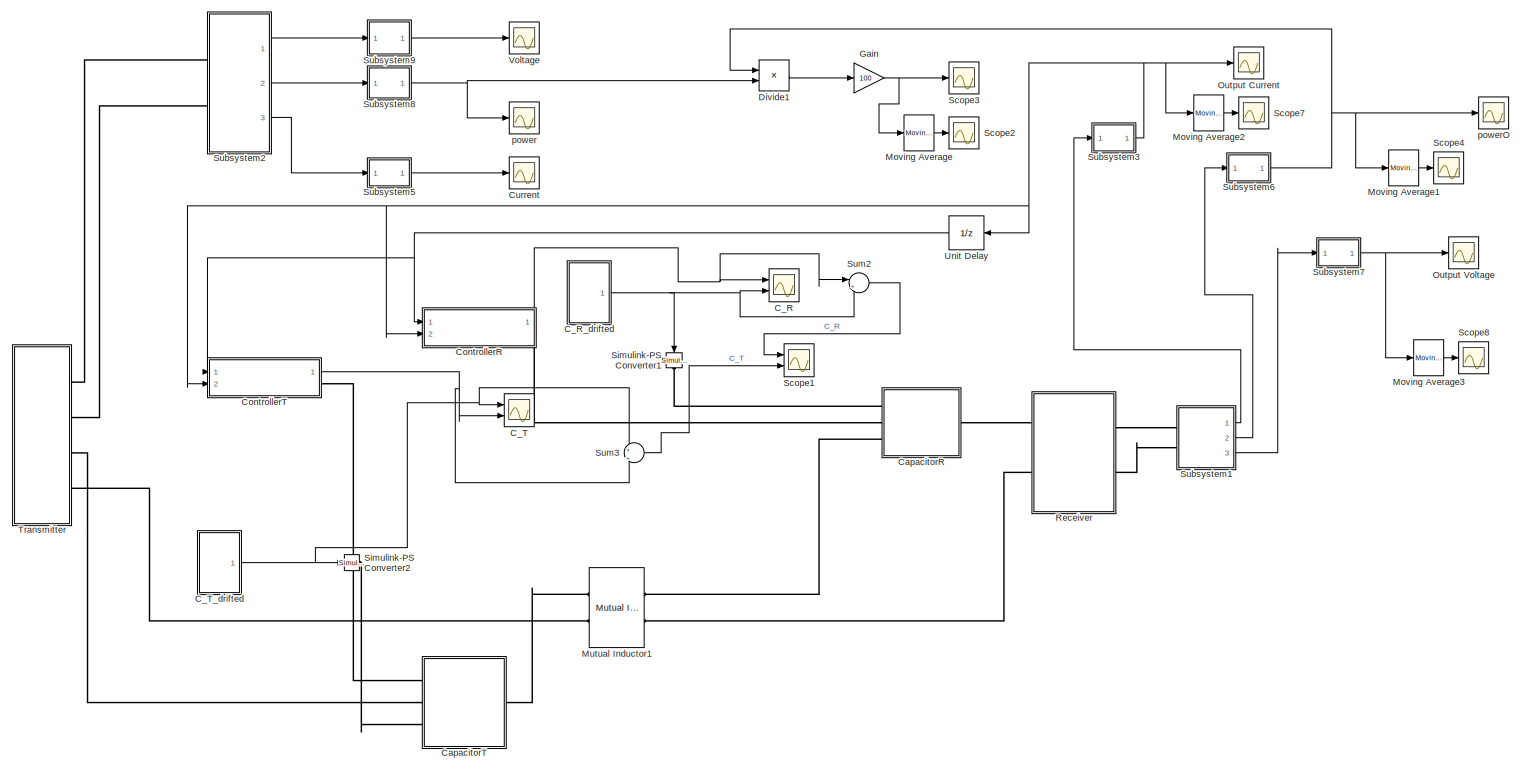
[diagram: root canvas - part 1/1, most of the canvas]
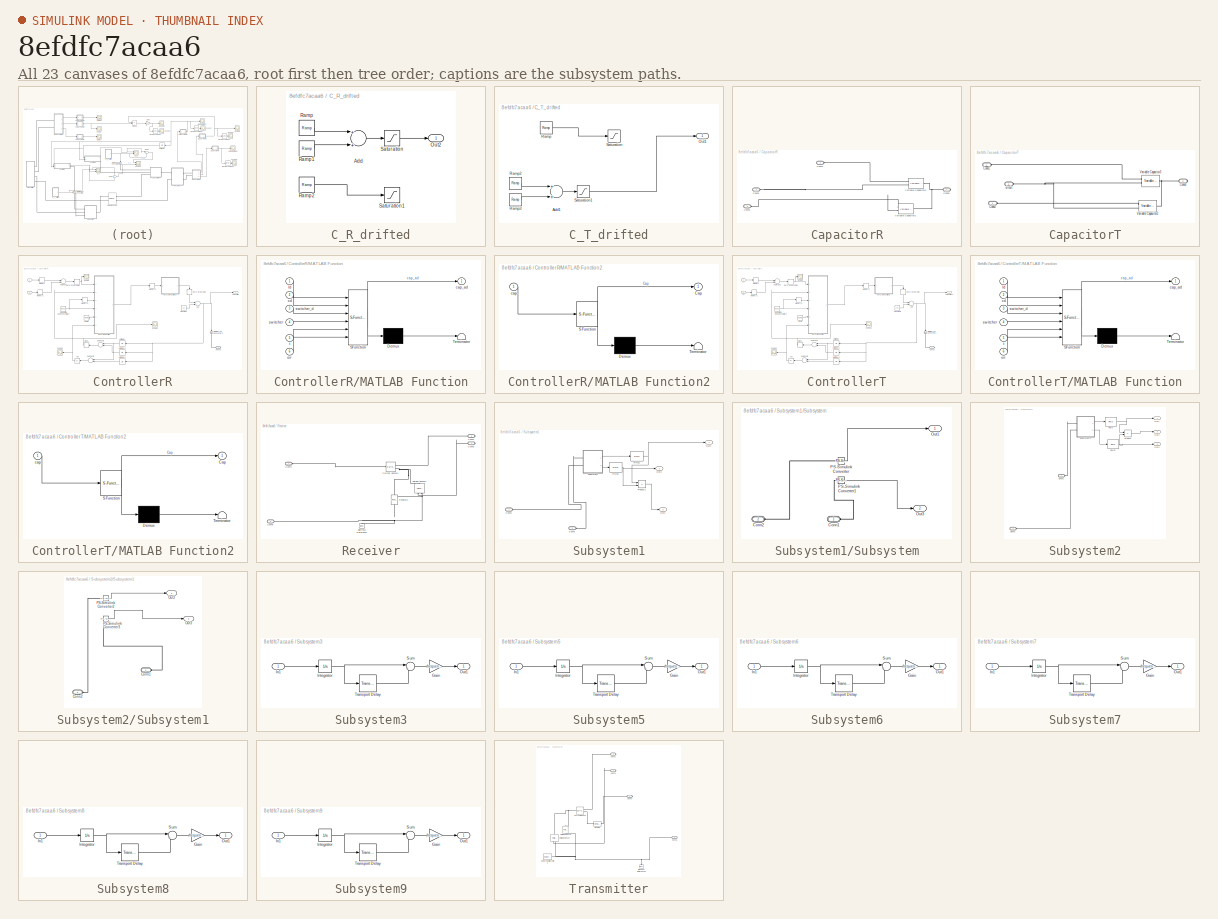
[diagram: thumbnail index - all 23 canvases of the model, root first then tree order]
MODEL slx_8efdfc7acaa6
KIND model
CONFIG AbsTol = auto
CONFIG EnableMultiTasking = off
CONFIG FixedStep = auto
CONFIG MaxStep = auto
CONFIG MinStep = auto
CONFIG RelTol = 1e-3
CONFIG SampleTimeConstraint = Unconstrained
CONFIG Solver = FixedStepAuto
CONFIG SolverName = FixedStepAuto
CONFIG StartTime = 0.0
CONFIG StopTime = 0.1
BLOCK [Scope] C_R
  Floating = off
  NumInputPorts = 2
  Ports = [2]
  ScopeSpecificationString = Simulink.scopes.TimeScopeBlockCfg('CurrentConfiguration', extmgr.ConfigurationSet(extmgr.Configuration('Core','General UI',true,'FigureColor',[0.941176470588235 0.941176470588235 0.941176470588235]),extmgr.Configuration('Core','Source UI',true),extmgr.Configuration('Sources','WiredSimulink',true,'DataLoggingVariableName','ScopeData1'),extmgr.Configuration('Visuals','Time Domain',true,'SerializedDi...<+1899ch>
BLOCK [SubSystem] C_R_drifted
  Ports = [0, 1]
  RequestExecContextInheritance = off
BLOCK [Sum] C_R_drifted/Add
  InputSameDT = off
  OutDataTypeStr = Inherit: Inherit via internal rule
  Ports = [2, 1]
  SaturateOnIntegerOverflow = off
BLOCK [Outport] C_R_drifted/Out2
  IconDisplay = Port number
BLOCK [Reference] C_R_drifted/Ramp  REF=simulink/Sources/Ramp
  Ports = [0, 1]
  SourceBlock = simulink/Sources/Ramp
  SourceProductBaseCode = SL
  SourceProductName = Simulink
  SourceType = Ramp
BLOCK [Reference] C_R_drifted/Ramp1  REF=simulink/Sources/Ramp
  Ports = [0, 1]
  SourceBlock = simulink/Sources/Ramp
  SourceProductBaseCode = SL
  SourceProductName = Simulink
  SourceType = Ramp
BLOCK [Reference] C_R_drifted/Ramp2  REF=simulink/Sources/Ramp
  Ports = [0, 1]
  SourceBlock = simulink/Sources/Ramp
  SourceProductBaseCode = SL
  SourceProductName = Simulink
  SourceType = Ramp
BLOCK [Saturate] C_R_drifted/Saturation
  InputPortMap = u0
  LowerLimit = c/2
  Ports = [1, 1]
  UpperLimit = 0.55*c
BLOCK [Saturate] C_R_drifted/Saturation1
  InputPortMap = u0
  LowerLimit = c/2
  Ports = [1, 1]
  UpperLimit = 0.55*c
BLOCK [Scope] C_T
  Floating = off
  NumInputPorts = 2
  Ports = [2]
  ScopeSpecificationString = Simulink.scopes.TimeScopeBlockCfg('CurrentConfiguration', extmgr.ConfigurationSet(extmgr.Configuration('Core','General UI',true,'FigureColor',[0.941176470588235 0.941176470588235 0.941176470588235]),extmgr.Configuration('Core','Source UI',true),extmgr.Configuration('Sources','WiredSimulink',true,'DataLoggingVariableName','ScopeData6'),extmgr.Configuration('Visuals','Time Domain',true,'SerializedDi...<+1921ch>
BLOCK [SubSystem] C_T_drifted
  Ports = [0, 1]
  RequestExecContextInheritance = off
BLOCK [Sum] C_T_drifted/Add1
  InputSameDT = off
  OutDataTypeStr = Inherit: Inherit via internal rule
  Ports = [2, 1]
  SaturateOnIntegerOverflow = off
BLOCK [Outport] C_T_drifted/Out1
  IconDisplay = Port number
BLOCK [Reference] C_T_drifted/Ramp  REF=simulink/Sources/Ramp
  Commented = on
  Ports = [0, 1]
  SourceBlock = simulink/Sources/Ramp
  SourceProductBaseCode = SL
  SourceProductName = Simulink
  SourceType = Ramp
BLOCK [Reference] C_T_drifted/Ramp2  REF=simulink/Sources/Ramp
  Ports = [0, 1]
  SourceBlock = simulink/Sources/Ramp
  SourceProductBaseCode = SL
  SourceProductName = Simulink
  SourceType = Ramp
BLOCK [Reference] C_T_drifted/Ramp3  REF=simulink/Sources/Ramp
  Ports = [0, 1]
  SourceBlock = simulink/Sources/Ramp
  SourceProductBaseCode = SL
  SourceProductName = Simulink
  SourceType = Ramp
BLOCK [Saturate] C_T_drifted/Saturation
  Commented = on
  InputPortMap = u0
  LowerLimit = c/2
  Ports = [1, 1]
  UpperLimit = 0.55*c
BLOCK [Saturate] C_T_drifted/Saturation1
  InputPortMap = u0
  LowerLimit = c/2
  Ports = [1, 1]
  UpperLimit = 0.55*c
BLOCK [SubSystem] CapacitorR
  Ports = [0, 0, 0, 0, 0, 3, 1]
  RequestExecContextInheritance = off
BLOCK [PMIOPort] CapacitorR/Conn1
  Side = Left
BLOCK [PMIOPort] CapacitorR/Conn2
  Port = 2
  Side = Left
BLOCK [PMIOPort] CapacitorR/Conn3
  Port = 3
  Side = Left
BLOCK [PMIOPort] CapacitorR/Conn5
  Port = 4
  Side = Right
BLOCK [Reference] CapacitorR/Variable Capacitor1  REF=ee_lib/Passive/Variable Capacitor
  Ports = [0, 0, 0, 0, 0, 2, 1]
  SourceBlock = ee_lib/Passive/Variable Capacitor
  SourceProductBaseCode = PS
  SourceProductName = Simscape Electrical
  SourceType = Variable Capacitor
BLOCK [Reference] CapacitorR/Variable Capacitor2  REF=ee_lib/Passive/Variable Capacitor
  Ports = [0, 0, 0, 0, 0, 2, 1]
  SourceBlock = ee_lib/Passive/Variable Capacitor
  SourceProductBaseCode = PS
  SourceProductName = Simscape Electrical
  SourceType = Variable Capacitor
BLOCK [SubSystem] CapacitorT
  Ports = [0, 0, 0, 0, 0, 3, 1]
  RequestExecContextInheritance = off
BLOCK [PMIOPort] CapacitorT/Conn1
  Side = Left
BLOCK [PMIOPort] CapacitorT/Conn2
  Port = 4
  Side = Left
BLOCK [PMIOPort] CapacitorT/Conn3
  Port = 2
  Side = Right
BLOCK [Reference] CapacitorT/Variable Capacitor2  REF=ee_lib/Passive/Variable Capacitor
  Ports = [0, 0, 0, 0, 0, 2, 1]
  SourceBlock = ee_lib/Passive/Variable Capacitor
  SourceProductBaseCode = PS
  SourceProductName = Simscape Electrical
  SourceType = Variable Capacitor
BLOCK [Reference] CapacitorT/Variable Capacitor3  REF=ee_lib/Passive/Variable Capacitor
  Ports = [0, 0, 0, 0, 0, 2, 1]
  SourceBlock = ee_lib/Passive/Variable Capacitor
  SourceProductBaseCode = PS
  SourceProductName = Simscape Electrical
  SourceType = Variable Capacitor
BLOCK [PMIOPort] CapacitorT/circuit
  Port = 3
  Side = Left
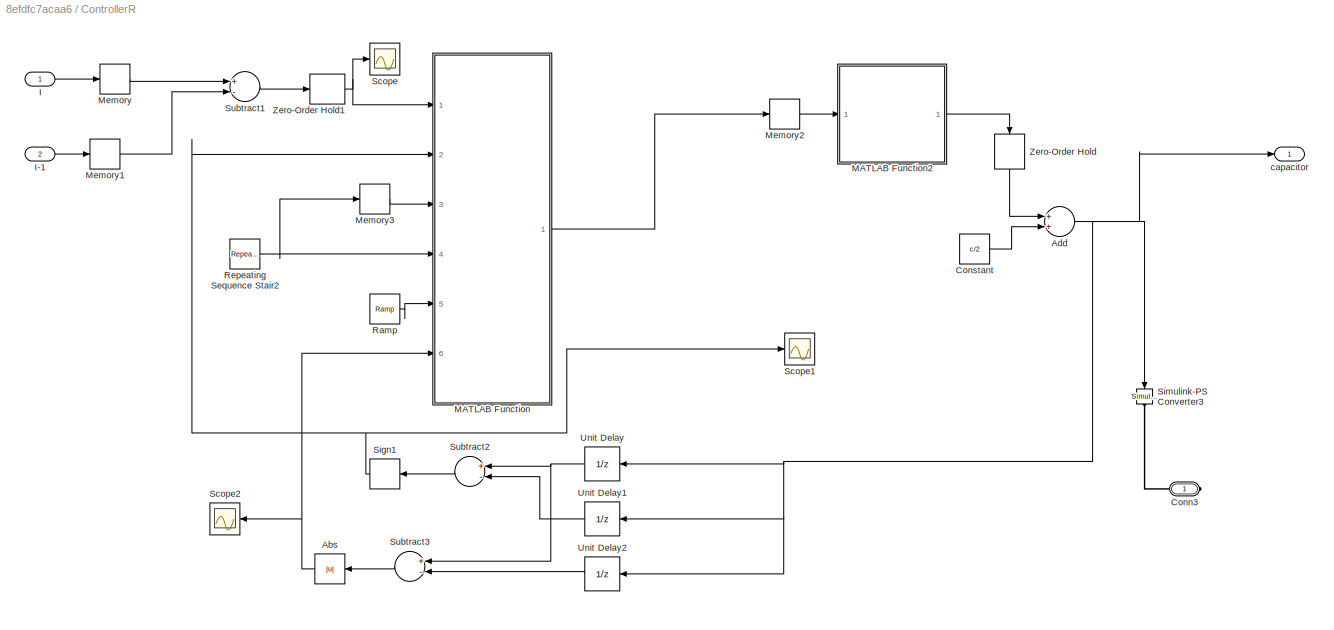
BLOCK [SubSystem] ControllerR
  Ports = [2, 1, 0, 0, 0, 0, 1]
  RequestExecContextInheritance = off
BLOCK [Abs] ControllerR/Abs
  SaturateOnIntegerOverflow = off
BLOCK [Sum] ControllerR/Add
  InputSameDT = off
  OutDataTypeStr = Inherit: Inherit via internal rule
  Ports = [2, 1]
  SaturateOnIntegerOverflow = off
BLOCK [PMIOPort] ControllerR/Conn3
  Side = Right
BLOCK [Constant] ControllerR/Constant
  SampleTime = 1e-8
  Value = c/2
BLOCK [Inport] ControllerR/I
  IconDisplay = Port number
BLOCK [Inport] ControllerR/I-1
  IconDisplay = Port number
  Port = 2
BLOCK [SubSystem] ControllerR/MATLAB Function
  ErrorFcn = Stateflow.Translate.translate
  PermitHierarchicalResolution = ExplicitOnly
  Ports = [6, 1]
  RequestExecContextInheritance = off
  SFBlockType = MATLAB Function
  TreatAsAtomicUnit = on
BLOCK [Demux] ControllerR/MATLAB Function/ Demux 
  Outputs = 1
  Ports = [1, 1]
BLOCK [S-Function] ControllerR/MATLAB Function/ SFunction 
  EnableBusSupport = on
  FunctionName = sf_sfun
  PortCounts = [6 2]
  Ports = [6, 2]
  SFcnIsStateOwnerBlock = off
  SFunctionDeploymentMode = off
  Tag = Stateflow S-Function 1
BLOCK [Terminator] ControllerR/MATLAB Function/ Terminator 
BLOCK [Inport] ControllerR/MATLAB Function/Id
  IconDisplay = Port number
BLOCK [Outport] ControllerR/MATLAB Function/cap_ad
  IconDisplay = Port number
BLOCK [Inport] ControllerR/MATLAB Function/cd
  IconDisplay = Port number
  Port = 2
BLOCK [Inport] ControllerR/MATLAB Function/err
  IconDisplay = Port number
  Port = 6
BLOCK [Inport] ControllerR/MATLAB Function/switcher
  IconDisplay = Port number
  Port = 4
BLOCK [Inport] ControllerR/MATLAB Function/switcher_d
  IconDisplay = Port number
  Port = 3
BLOCK [Inport] ControllerR/MATLAB Function/t
  IconDisplay = Port number
  Port = 5
BLOCK [SubSystem] ControllerR/MATLAB Function2
  ErrorFcn = Stateflow.Translate.translate
  PermitHierarchicalResolution = ExplicitOnly
  Ports = [1, 1]
  RequestExecContextInheritance = off
  SFBlockType = MATLAB Function
  TreatAsAtomicUnit = on
BLOCK [Demux] ControllerR/MATLAB Function2/ Demux 
  Outputs = 1
  Ports = [1, 1]
BLOCK [S-Function] ControllerR/MATLAB Function2/ SFunction 
  EnableBusSupport = on
  FunctionName = sf_sfun
  PortCounts = [1 2]
  Ports = [1, 2]
  SFcnIsStateOwnerBlock = off
  SFunctionDeploymentMode = off
  Tag = Stateflow S-Function 4
BLOCK [Terminator] ControllerR/MATLAB Function2/ Terminator 
BLOCK [Outport] ControllerR/MATLAB Function2/Cap
  IconDisplay = Port number
BLOCK [Inport] ControllerR/MATLAB Function2/cap
  IconDisplay = Port number
BLOCK [Memory] ControllerR/Memory
BLOCK [Memory] ControllerR/Memory1
BLOCK [Memory] ControllerR/Memory2
BLOCK [Memory] ControllerR/Memory3
BLOCK [Reference] ControllerR/Ramp  REF=simulink/Sources/Ramp
  Ports = [0, 1]
  SourceBlock = simulink/Sources/Ramp
  SourceProductBaseCode = SL
  SourceProductName = Simulink
  SourceType = Ramp
BLOCK [Reference] ControllerR/Repeating Sequence Stair2  REF=simulink/Sources/Repeating
Sequence
Stair
  Ports = [0, 1]
  SourceBlock = simulink/Sources/Repeating\nSequence\nStair
  SourceProductBaseCode = SL
  SourceProductName = Simulink
  SourceType = Repeating Sequence Stair
BLOCK [Scope] ControllerR/Scope
  Floating = off
  NumInputPorts = 1
  Ports = [1]
  ScopeSpecificationString = Simulink.scopes.TimeScopeBlockCfg('CurrentConfiguration', extmgr.ConfigurationSet(extmgr.Configuration('Core','General UI',true),extmgr.Configuration('Core','Source UI',true),extmgr.Configuration('Sources','WiredSimulink',true,'DataLoggingVariableName','ScopeData1'),extmgr.Configuration('Visuals','Time Domain',true,'SerializedDisplays',{struct('MinYLimReal','-0.00019','MaxYLimReal','0.00009','YLab...<+1448ch>
BLOCK [Scope] ControllerR/Scope1
  Floating = off
  NumInputPorts = 1
  Ports = [1]
  ScopeSpecificationString = Simulink.scopes.TimeScopeBlockCfg('CurrentConfiguration', extmgr.ConfigurationSet(extmgr.Configuration('Core','General UI',true),extmgr.Configuration('Core','Source UI',true),extmgr.Configuration('Sources','WiredSimulink',true,'DataLoggingVariableName','ScopeData1'),extmgr.Configuration('Visuals','Time Domain',true,'SerializedDisplays',{struct('MinYLimReal','-1.25','MaxYLimReal','1.25','YLabelReal...<+1375ch>
BLOCK [Scope] ControllerR/Scope2
  Floating = off
  NumInputPorts = 1
  Ports = [1]
  ScopeSpecificationString = Simulink.scopes.TimeScopeBlockCfg('CurrentConfiguration', extmgr.ConfigurationSet(extmgr.Configuration('Core','General UI',true),extmgr.Configuration('Core','Source UI',true),extmgr.Configuration('Sources','WiredSimulink',true,'DataLoggingVariableName','ScopeData2'),extmgr.Configuration('Visuals','Time Domain',true,'SerializedDisplays',{struct('MinYLimReal','-0.0000000000009','MaxYLimReal','0.0000...<+1474ch>
BLOCK [Signum] ControllerR/Sign1
BLOCK [Reference] ControllerR/Simulink-PS Converter3  REF=nesl_utility/Simulink-PS
Converter
  Ports = [1, 0, 0, 0, 0, 0, 1]
  SourceBlock = nesl_utility/Simulink-PS\nConverter
  SourceProductBaseCode = SS
  SourceProductName = Simscape
  SourceType = Simulink-PS\nConverter
BLOCK [Sum] ControllerR/Subtract1
  InputSameDT = off
  Inputs = +-
  OutDataTypeStr = Inherit: Inherit via internal rule
  Ports = [2, 1]
  SaturateOnIntegerOverflow = off
BLOCK [Sum] ControllerR/Subtract2
  InputSameDT = off
  Inputs = +-
  OutDataTypeStr = Inherit: Inherit via internal rule
  Ports = [2, 1]
  SaturateOnIntegerOverflow = off
BLOCK [Sum] ControllerR/Subtract3
  InputSameDT = off
  Inputs = +-
  OutDataTypeStr = Inherit: Inherit via internal rule
  Ports = [2, 1]
  SaturateOnIntegerOverflow = off
BLOCK [UnitDelay] ControllerR/Unit Delay
  HasFrameUpgradeWarning = on
  SampleTime = 2e-5
BLOCK [UnitDelay] ControllerR/Unit Delay1
  HasFrameUpgradeWarning = on
  SampleTime = 4e-5
BLOCK [UnitDelay] ControllerR/Unit Delay2
  HasFrameUpgradeWarning = on
  SampleTime = 6e-5
BLOCK [ZeroOrderHold] ControllerR/Zero-Order Hold
  SampleTime = 2e-5
BLOCK [ZeroOrderHold] ControllerR/Zero-Order Hold1
  SampleTime = 2e-5
BLOCK [Outport] ControllerR/capacitor 
  IconDisplay = Port number
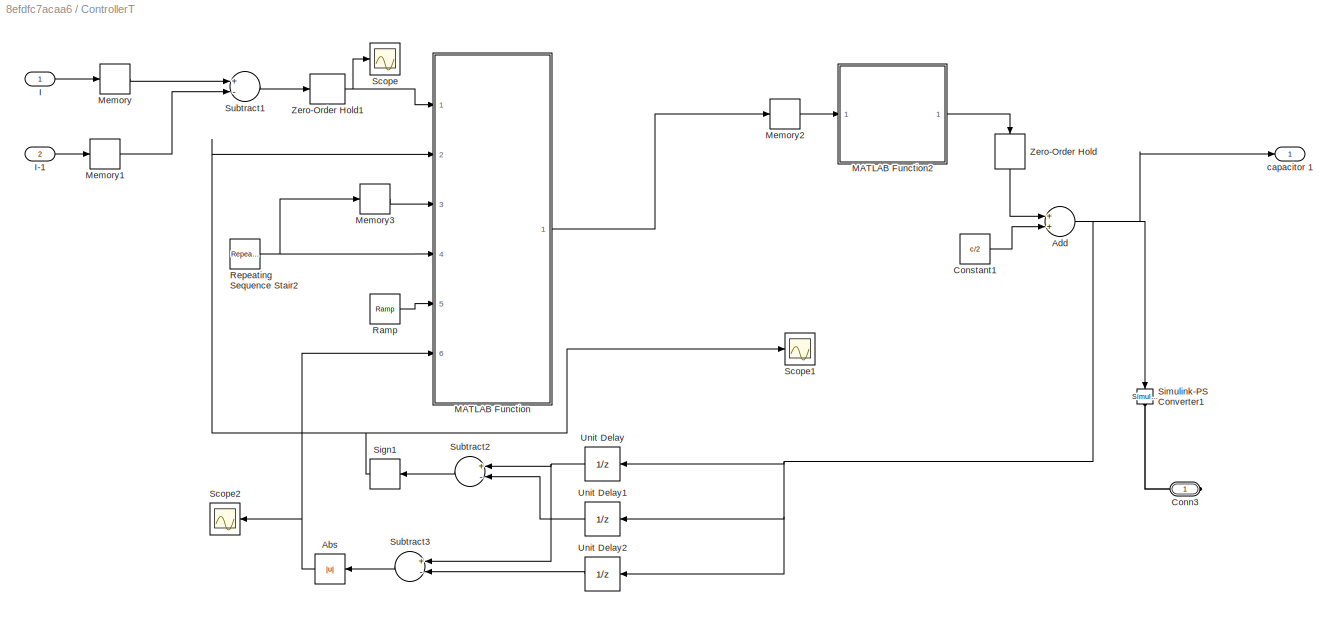
BLOCK [SubSystem] ControllerT
  Ports = [2, 1, 0, 0, 0, 0, 1]
  RequestExecContextInheritance = off
BLOCK [Abs] ControllerT/Abs
  SaturateOnIntegerOverflow = off
BLOCK [Sum] ControllerT/Add
  InputSameDT = off
  OutDataTypeStr = Inherit: Inherit via internal rule
  Ports = [2, 1]
  SaturateOnIntegerOverflow = off
BLOCK [PMIOPort] ControllerT/Conn3
  Side = Right
BLOCK [Constant] ControllerT/Constant1
  SampleTime = 1e-8
  Value = c/2
BLOCK [Inport] ControllerT/I
  IconDisplay = Port number
BLOCK [Inport] ControllerT/I-1
  IconDisplay = Port number
  Port = 2
BLOCK [SubSystem] ControllerT/MATLAB Function
  ErrorFcn = Stateflow.Translate.translate
  PermitHierarchicalResolution = ExplicitOnly
  Ports = [6, 1]
  RequestExecContextInheritance = off
  SFBlockType = MATLAB Function
  TreatAsAtomicUnit = on
BLOCK [Demux] ControllerT/MATLAB Function/ Demux 
  Outputs = 1
  Ports = [1, 1]
BLOCK [S-Function] ControllerT/MATLAB Function/ SFunction 
  EnableBusSupport = on
  FunctionName = sf_sfun
  PortCounts = [6 2]
  Ports = [6, 2]
  SFcnIsStateOwnerBlock = off
  SFunctionDeploymentMode = off
  Tag = Stateflow S-Function 2
BLOCK [Terminator] ControllerT/MATLAB Function/ Terminator 
BLOCK [Inport] ControllerT/MATLAB Function/Id
  IconDisplay = Port number
BLOCK [Outport] ControllerT/MATLAB Function/cap_ad
  IconDisplay = Port number
BLOCK [Inport] ControllerT/MATLAB Function/cd
  IconDisplay = Port number
  Port = 2
BLOCK [Inport] ControllerT/MATLAB Function/err
  IconDisplay = Port number
  Port = 6
BLOCK [Inport] ControllerT/MATLAB Function/switcher
  IconDisplay = Port number
  Port = 4
BLOCK [Inport] ControllerT/MATLAB Function/switcher_d
  IconDisplay = Port number
  Port = 3
BLOCK [Inport] ControllerT/MATLAB Function/t
  IconDisplay = Port number
  Port = 5
BLOCK [SubSystem] ControllerT/MATLAB Function2
  ErrorFcn = Stateflow.Translate.translate
  PermitHierarchicalResolution = ExplicitOnly
  Ports = [1, 1]
  RequestExecContextInheritance = off
  SFBlockType = MATLAB Function
  TreatAsAtomicUnit = on
BLOCK [Demux] ControllerT/MATLAB Function2/ Demux 
  Outputs = 1
  Ports = [1, 1]
BLOCK [S-Function] ControllerT/MATLAB Function2/ SFunction 
  EnableBusSupport = on
  FunctionName = sf_sfun
  PortCounts = [1 2]
  Ports = [1, 2]
  SFcnIsStateOwnerBlock = off
  SFunctionDeploymentMode = off
  Tag = Stateflow S-Function 3
BLOCK [Terminator] ControllerT/MATLAB Function2/ Terminator 
BLOCK [Outport] ControllerT/MATLAB Function2/Cap
  IconDisplay = Port number
BLOCK [Inport] ControllerT/MATLAB Function2/cap
  IconDisplay = Port number
BLOCK [Memory] ControllerT/Memory
BLOCK [Memory] ControllerT/Memory1
BLOCK [Memory] ControllerT/Memory2
BLOCK [Memory] ControllerT/Memory3
BLOCK [Reference] ControllerT/Ramp  REF=simulink/Sources/Ramp
  Ports = [0, 1]
  SourceBlock = simulink/Sources/Ramp
  SourceProductBaseCode = SL
  SourceProductName = Simulink
  SourceType = Ramp
BLOCK [Reference] ControllerT/Repeating Sequence Stair2  REF=simulink/Sources/Repeating
Sequence
Stair
  Ports = [0, 1]
  SourceBlock = simulink/Sources/Repeating\nSequence\nStair
  SourceProductBaseCode = SL
  SourceProductName = Simulink
  SourceType = Repeating Sequence Stair
BLOCK [Scope] ControllerT/Scope
  Floating = off
  NumInputPorts = 1
  Ports = [1]
  ScopeSpecificationString = Simulink.scopes.TimeScopeBlockCfg('CurrentConfiguration', extmgr.ConfigurationSet(extmgr.Configuration('Core','General UI',true),extmgr.Configuration('Core','Source UI',true),extmgr.Configuration('Sources','WiredSimulink',true,'DataLoggingVariableName','ScopeData1'),extmgr.Configuration('Visuals','Time Domain',true,'SerializedDisplays',{struct('MinYLimReal','-0.00019','MaxYLimReal','0.00009','YLab...<+1448ch>
BLOCK [Scope] ControllerT/Scope1
  Floating = off
  NumInputPorts = 1
  Ports = [1]
  ScopeSpecificationString = Simulink.scopes.TimeScopeBlockCfg('CurrentConfiguration', extmgr.ConfigurationSet(extmgr.Configuration('Core','General UI',true),extmgr.Configuration('Core','Source UI',true),extmgr.Configuration('Sources','WiredSimulink',true,'DataLoggingVariableName','ScopeData2'),extmgr.Configuration('Visuals','Time Domain',true,'SerializedDisplays',{struct('MinYLimReal','-1.25','MaxYLimReal','1.25','YLabelReal...<+1375ch>
BLOCK [Scope] ControllerT/Scope2
  Floating = off
  NumInputPorts = 1
  Ports = [1]
  ScopeSpecificationString = Simulink.scopes.TimeScopeBlockCfg('CurrentConfiguration', extmgr.ConfigurationSet(extmgr.Configuration('Core','General UI',true),extmgr.Configuration('Core','Source UI',true),extmgr.Configuration('Sources','WiredSimulink',true,'DataLoggingVariableName','ScopeData3'),extmgr.Configuration('Visuals','Time Domain',true,'SerializedDisplays',{struct('MinYLimReal','-0.0000000000009','MaxYLimReal','0.0000...<+1474ch>
BLOCK [Signum] ControllerT/Sign1
BLOCK [Reference] ControllerT/Simulink-PS Converter1  REF=nesl_utility/Simulink-PS
Converter
  Ports = [1, 0, 0, 0, 0, 0, 1]
  SourceBlock = nesl_utility/Simulink-PS\nConverter
  SourceProductBaseCode = SS
  SourceProductName = Simscape
  SourceType = Simulink-PS\nConverter
BLOCK [Sum] ControllerT/Subtract1
  InputSameDT = off
  Inputs = +-
  OutDataTypeStr = Inherit: Inherit via internal rule
  Ports = [2, 1]
  SaturateOnIntegerOverflow = off
BLOCK [Sum] ControllerT/Subtract2
  InputSameDT = off
  Inputs = +-
  OutDataTypeStr = Inherit: Inherit via internal rule
  Ports = [2, 1]
  SaturateOnIntegerOverflow = off
BLOCK [Sum] ControllerT/Subtract3
  InputSameDT = off
  Inputs = +-
  OutDataTypeStr = Inherit: Inherit via internal rule
  Ports = [2, 1]
  SaturateOnIntegerOverflow = off
BLOCK [UnitDelay] ControllerT/Unit Delay
  HasFrameUpgradeWarning = on
  SampleTime = 2e-5
BLOCK [UnitDelay] ControllerT/Unit Delay1
  HasFrameUpgradeWarning = on
  SampleTime = 4e-5
BLOCK [UnitDelay] ControllerT/Unit Delay2
  HasFrameUpgradeWarning = on
  SampleTime = 6e-5
BLOCK [ZeroOrderHold] ControllerT/Zero-Order Hold
  SampleTime = 2e-5
BLOCK [ZeroOrderHold] ControllerT/Zero-Order Hold1
  SampleTime = 2e-5
BLOCK [Outport] ControllerT/capacitor 1
  IconDisplay = Port number
BLOCK [Scope] Current
  Floating = off
  NumInputPorts = 1
  Ports = [1]
  ScopeSpecificationString = Simulink.scopes.TimeScopeBlockCfg('CurrentConfiguration', extmgr.ConfigurationSet(extmgr.Configuration('Core','General UI',true),extmgr.Configuration('Core','Source UI',true),extmgr.Configuration('Sources','WiredSimulink',true,'DataLoggingVariableName','ScopeData2'),extmgr.Configuration('Visuals','Time Domain',true,'SerializedDisplays',{struct('MinYLimReal','-0.00107','MaxYLimReal','0.0096','YLabe...<+1438ch>
BLOCK [Product] Divide1
  InputSameDT = off
  Inputs = */
  OutDataTypeStr = Inherit: Inherit via internal rule
  Ports = [2, 1]
  RndMeth = Floor
  SaturateOnIntegerOverflow = off
BLOCK [Gain] Gain
  Gain = 100
  OutDataTypeStr = Inherit: Inherit via internal rule
  ParamDataTypeStr = Inherit: Inherit via internal rule
  SaturateOnIntegerOverflow = off
BLOCK [Reference] Moving Average  REF=dspstat3/Moving
Average
  Ports = [1, 1]
  SourceBlock = dspstat3/Moving\nAverage
  SourceProductBaseCode = DS
  SourceProductName = DSP System Toolbox
  SourceType = dsp.simulink.MovingAverage
BLOCK [Reference] Moving Average1  REF=dspstat3/Moving
Average
  Ports = [1, 1]
  SourceBlock = dspstat3/Moving\nAverage
  SourceProductBaseCode = DS
  SourceProductName = DSP System Toolbox
  SourceType = dsp.simulink.MovingAverage
BLOCK [Reference] Moving Average2  REF=dspstat3/Moving
Average
  Ports = [1, 1]
  SourceBlock = dspstat3/Moving\nAverage
  SourceProductBaseCode = DS
  SourceProductName = DSP System Toolbox
  SourceType = dsp.simulink.MovingAverage
BLOCK [Reference] Moving Average3  REF=dspstat3/Moving
Average
  Ports = [1, 1]
  SourceBlock = dspstat3/Moving\nAverage
  SourceProductBaseCode = DS
  SourceProductName = DSP System Toolbox
  SourceType = dsp.simulink.MovingAverage
BLOCK [Reference] Mutual Inductor1  REF=fl_lib/Electrical/Electrical Elements/Mutual Inductor
  Ports = [0, 0, 0, 0, 0, 2, 2]
  SourceBlock = fl_lib/Electrical/Electrical Elements/Mutual Inductor
  SourceProductBaseCode = SS
  SourceProductName = Simscape
  SourceType = Mutual Inductor
BLOCK [Scope] Output Current
  Floating = off
  NumInputPorts = 1
  Ports = [1]
  ScopeSpecificationString = Simulink.scopes.TimeScopeBlockCfg('CurrentConfiguration', extmgr.ConfigurationSet(extmgr.Configuration('Core','General UI',true,'FigureColor',[0.941176470588235 0.941176470588235 0.941176470588235]),extmgr.Configuration('Core','Source UI',true),extmgr.Configuration('Sources','WiredSimulink',true,'DataLoggingVariableName','ScopeData3'),extmgr.Configuration('Visuals','Time Domain',true,'SerializedDi...<+1874ch>
BLOCK [Scope] Output Voltage
  Floating = off
  NumInputPorts = 1
  Ports = [1]
  ScopeSpecificationString = Simulink.scopes.TimeScopeBlockCfg('CurrentConfiguration', extmgr.ConfigurationSet(extmgr.Configuration('Core','General UI',true,'FigureColor',[0.941176470588235 0.941176470588235 0.941176470588235]),extmgr.Configuration('Core','Source UI',true),extmgr.Configuration('Sources','WiredSimulink',true,'DataLoggingVariableName','ScopeData4'),extmgr.Configuration('Visuals','Time Domain',true,'SerializedDi...<+1758ch>
BLOCK [SubSystem] Receiver
  Ports = [0, 0, 0, 0, 0, 2, 2]
  RequestExecContextInheritance = off
BLOCK [PMIOPort] Receiver/Conn1
  Side = Right
BLOCK [PMIOPort] Receiver/Conn2
  Port = 2
  Side = Right
BLOCK [PMIOPort] Receiver/Conn4
  Port = 3
  Side = Left
BLOCK [PMIOPort] Receiver/Conn5
  Port = 4
  Side = Left
BLOCK [Reference] Receiver/Current Sensor1  REF=fl_lib/Electrical/Electrical Sensors/Current Sensor
  Ports = [0, 0, 0, 0, 0, 1, 2]
  SourceBlock = fl_lib/Electrical/Electrical Sensors/Current Sensor
  SourceProductBaseCode = SS
  SourceProductName = Simscape
  SourceType = Current Sensor
BLOCK [Reference] Receiver/Electrical Reference  REF=fl_lib/Electrical/Electrical Elements/Electrical Reference
  Ports = [0, 0, 0, 0, 0, 1]
  SourceBlock = fl_lib/Electrical/Electrical Elements/Electrical Reference
  SourceProductBaseCode = SS
  SourceProductName = Simscape
  SourceType = Electrical Reference
BLOCK [Reference] Receiver/Resistor1  REF=ee_lib/Passive/Resistor
  Ports = [0, 0, 0, 0, 0, 1, 1]
  SourceBlock = ee_lib/Passive/Resistor
  SourceProductBaseCode = PS
  SourceProductName = Simscape Electrical
  SourceType = Resistor
BLOCK [Reference] Receiver/Voltage Sensor1  REF=fl_lib/Electrical/Electrical Sensors/Voltage Sensor
  Ports = [0, 0, 0, 0, 0, 1, 2]
  SourceBlock = fl_lib/Electrical/Electrical Sensors/Voltage Sensor
  SourceProductBaseCode = SS
  SourceProductName = Simscape
  SourceType = Voltage Sensor
BLOCK [Scope] Scope1
  Floating = off
  NumInputPorts = 2
  Ports = [2]
  ScopeSpecificationString = Simulink.scopes.TimeScopeBlockCfg('CurrentConfiguration', extmgr.ConfigurationSet(extmgr.Configuration('Core','General UI',true,'FigureColor',[0.941176470588235 0.941176470588235 0.941176470588235]),extmgr.Configuration('Core','Source UI',true),extmgr.Configuration('Sources','WiredSimulink',true,'DataLoggingVariableName','ScopeData1'),extmgr.Configuration('Visuals','Time Domain',true,'SerializedDi...<+1951ch>
BLOCK [Scope] Scope2
  Floating = off
  NumInputPorts = 1
  Ports = [1]
  ScopeSpecificationString = Simulink.scopes.TimeScopeBlockCfg('CurrentConfiguration', extmgr.ConfigurationSet(extmgr.Configuration('Core','General UI',true,'FigureColor',[0.941176470588235 0.941176470588235 0.941176470588235]),extmgr.Configuration('Core','Source UI',true),extmgr.Configuration('Sources','WiredSimulink',true,'DataLoggingVariableName','ScopeData2'),extmgr.Configuration('Visuals','Time Domain',true,'SerializedDi...<+1785ch>
BLOCK [Scope] Scope3
  Floating = off
  NumInputPorts = 1
  Ports = [1]
  ScopeSpecificationString = Simulink.scopes.TimeScopeBlockCfg('CurrentConfiguration', extmgr.ConfigurationSet(extmgr.Configuration('Core','General UI',true,'FigureColor',[0.941176470588235 0.941176470588235 0.941176470588235]),extmgr.Configuration('Core','Source UI',true),extmgr.Configuration('Sources','WiredSimulink',true,'DataLoggingVariableName','ScopeData5'),extmgr.Configuration('Visuals','Time Domain',true,'SerializedDi...<+1798ch>
BLOCK [Scope] Scope4
  Floating = off
  NumInputPorts = 1
  Ports = [1]
  ScopeSpecificationString = Simulink.scopes.TimeScopeBlockCfg('CurrentConfiguration', extmgr.ConfigurationSet(extmgr.Configuration('Core','General UI',true,'FigureColor',[0.941176470588235 0.941176470588235 0.941176470588235]),extmgr.Configuration('Core','Source UI',true),extmgr.Configuration('Sources','WiredSimulink',true,'DataLoggingVariableName','ScopeData3'),extmgr.Configuration('Visuals','Time Domain',true,'SerializedDi...<+1780ch>
BLOCK [Scope] Scope7
  Floating = off
  NumInputPorts = 1
  Ports = [1]
  ScopeSpecificationString = Simulink.scopes.TimeScopeBlockCfg('CurrentConfiguration', extmgr.ConfigurationSet(extmgr.Configuration('Core','General UI',true,'FigureColor',[0.941176470588235 0.941176470588235 0.941176470588235]),extmgr.Configuration('Core','Source UI',true),extmgr.Configuration('Sources','WiredSimulink',true,'DataLoggingVariableName','ScopeData4'),extmgr.Configuration('Visuals','Time Domain',true,'SerializedDi...<+1782ch>
BLOCK [Scope] Scope8
  Floating = off
  NumInputPorts = 1
  Ports = [1]
  ScopeSpecificationString = Simulink.scopes.TimeScopeBlockCfg('CurrentConfiguration', extmgr.ConfigurationSet(extmgr.Configuration('Core','General UI',true,'FigureColor',[0.941176470588235 0.941176470588235 0.941176470588235]),extmgr.Configuration('Core','Source UI',true),extmgr.Configuration('Sources','WiredSimulink',true,'DataLoggingVariableName','ScopeData5'),extmgr.Configuration('Visuals','Time Domain',true,'SerializedDi...<+1782ch>
BLOCK [Reference] Simulink-PS Converter1  REF=nesl_utility/Simulink-PS
Converter
  Ports = [1, 0, 0, 0, 0, 0, 1]
  SourceBlock = nesl_utility/Simulink-PS\nConverter
  SourceProductBaseCode = SS
  SourceProductName = Simscape
  SourceType = Simulink-PS\nConverter
BLOCK [Reference] Simulink-PS Converter2  REF=nesl_utility/Simulink-PS
Converter
  Ports = [1, 0, 0, 0, 0, 0, 1]
  SourceBlock = nesl_utility/Simulink-PS\nConverter
  SourceProductBaseCode = SS
  SourceProductName = Simscape
  SourceType = Simulink-PS\nConverter
BLOCK [SubSystem] Subsystem1
  Ports = [0, 3, 0, 0, 0, 2]
  RequestExecContextInheritance = off
BLOCK [PMIOPort] Subsystem1/Conn1
  Side = Left
BLOCK [PMIOPort] Subsystem1/Conn2
  Port = 2
  Side = Left
BLOCK [Outport] Subsystem1/Out1
  IconDisplay = Port number
BLOCK [Outport] Subsystem1/Out2
  IconDisplay = Port number
  Port = 2
BLOCK [Outport] Subsystem1/Out3
  IconDisplay = Port number
  Port = 3
BLOCK [Product] Subsystem1/Product1
  InputSameDT = off
  OutDataTypeStr = Inherit: Inherit via internal rule
  Ports = [2, 1]
  RndMeth = Floor
  SaturateOnIntegerOverflow = off
BLOCK [Reference] Subsystem1/RMS1  REF=powerlib_meascontrol/Measurements/RMS
  Ports = [1, 1]
  SourceBlock = powerlib_meascontrol/Measurements/RMS
  SourceProductBaseCode = PS
  SourceProductName = Simscape Electrical
  SourceType = RMS
BLOCK [Reference] Subsystem1/RMS3  REF=powerlib_meascontrol/Measurements/RMS
  Ports = [1, 1]
  SourceBlock = powerlib_meascontrol/Measurements/RMS
  SourceProductBaseCode = PS
  SourceProductName = Simscape Electrical
  SourceType = RMS
BLOCK [SubSystem] Subsystem1/Subsystem
  Ports = [0, 2, 0, 0, 0, 2]
  RequestExecContextInheritance = off
BLOCK [PMIOPort] Subsystem1/Subsystem/Conn1
  Side = Left
BLOCK [PMIOPort] Subsystem1/Subsystem/Conn2
  Port = 2
  Side = Left
BLOCK [Outport] Subsystem1/Subsystem/Out1
  IconDisplay = Port number
BLOCK [Outport] Subsystem1/Subsystem/Out3
  IconDisplay = Port number
  Port = 2
BLOCK [Reference] Subsystem1/Subsystem/PS-Simulink Converter  REF=nesl_utility/PS-Simulink
Converter
  Ports = [0, 1, 0, 0, 0, 1]
  SourceBlock = nesl_utility/PS-Simulink\nConverter
  SourceProductBaseCode = SS
  SourceProductName = Simscape
  SourceType = PS-Simulink\nConverter
BLOCK [Reference] Subsystem1/Subsystem/PS-Simulink Converter1  REF=nesl_utility/PS-Simulink
Converter
  Ports = [0, 1, 0, 0, 0, 1]
  SourceBlock = nesl_utility/PS-Simulink\nConverter
  SourceProductBaseCode = SS
  SourceProductName = Simscape
  SourceType = PS-Simulink\nConverter
BLOCK [SubSystem] Subsystem2
  Ports = [0, 3, 0, 0, 0, 2]
  RequestExecContextInheritance = off
BLOCK [PMIOPort] Subsystem2/Conn1
  Side = Left
BLOCK [PMIOPort] Subsystem2/Conn2
  Port = 2
  Side = Left
BLOCK [Outport] Subsystem2/Out1
  IconDisplay = Port number
BLOCK [Outport] Subsystem2/Out2
  IconDisplay = Port number
  Port = 2
BLOCK [Outport] Subsystem2/Out3
  IconDisplay = Port number
  Port = 3
BLOCK [Product] Subsystem2/Product
  InputSameDT = off
  OutDataTypeStr = Inherit: Inherit via internal rule
  Ports = [2, 1]
  RndMeth = Floor
  SaturateOnIntegerOverflow = off
BLOCK [Reference] Subsystem2/RMS  REF=powerlib_meascontrol/Measurements/RMS
  Ports = [1, 1]
  SourceBlock = powerlib_meascontrol/Measurements/RMS
  SourceProductBaseCode = PS
  SourceProductName = Simscape Electrical
  SourceType = RMS
BLOCK [Reference] Subsystem2/RMS2  REF=powerlib_meascontrol/Measurements/RMS
  Ports = [1, 1]
  SourceBlock = powerlib_meascontrol/Measurements/RMS
  SourceProductBaseCode = PS
  SourceProductName = Simscape Electrical
  SourceType = RMS
BLOCK [SubSystem] Subsystem2/Subsystem1
  Ports = [0, 2, 0, 0, 0, 2]
  RequestExecContextInheritance = off
BLOCK [PMIOPort] Subsystem2/Subsystem1/Conn1
  Side = Left
BLOCK [PMIOPort] Subsystem2/Subsystem1/Conn2
  Port = 2
  Side = Left
BLOCK [Outport] Subsystem2/Subsystem1/Out2
  IconDisplay = Port number
BLOCK [Outport] Subsystem2/Subsystem1/Out3
  IconDisplay = Port number
  Port = 2
BLOCK [Reference] Subsystem2/Subsystem1/PS-Simulink Converter2  REF=nesl_utility/PS-Simulink
Converter
  Ports = [0, 1, 0, 0, 0, 1]
  SourceBlock = nesl_utility/PS-Simulink\nConverter
  SourceProductBaseCode = SS
  SourceProductName = Simscape
  SourceType = PS-Simulink\nConverter
BLOCK [Reference] Subsystem2/Subsystem1/PS-Simulink Converter3  REF=nesl_utility/PS-Simulink
Converter
  Ports = [0, 1, 0, 0, 0, 1]
  SourceBlock = nesl_utility/PS-Simulink\nConverter
  SourceProductBaseCode = SS
  SourceProductName = Simscape
  SourceType = PS-Simulink\nConverter
BLOCK [SubSystem] Subsystem3
  Ports = [1, 1]
  RequestExecContextInheritance = off
BLOCK [Gain] Subsystem3/Gain
  Gain = frequency
  OutDataTypeStr = Inherit: Inherit via internal rule
  ParamDataTypeStr = Inherit: Inherit via internal rule
  SaturateOnIntegerOverflow = off
BLOCK [Inport] Subsystem3/In1
  IconDisplay = Port number
BLOCK [Integrator] Subsystem3/Integrator
  Ports = [1, 1]
BLOCK [Outport] Subsystem3/Out1
  IconDisplay = Port number
BLOCK [Sum] Subsystem3/Sum
  IconShape = round
  InputSameDT = off
  Inputs = |+-
  OutDataTypeStr = Inherit: Inherit via internal rule
  Ports = [2, 1]
  SaturateOnIntegerOverflow = off
BLOCK [TransportDelay] Subsystem3/Transport Delay
  DelayTime = 1/frequency
  Ports = [1, 1]
BLOCK [SubSystem] Subsystem5
  Ports = [1, 1]
  RequestExecContextInheritance = off
BLOCK [Gain] Subsystem5/Gain
  Gain = frequency
  OutDataTypeStr = Inherit: Inherit via internal rule
  ParamDataTypeStr = Inherit: Inherit via internal rule
  SaturateOnIntegerOverflow = off
BLOCK [Inport] Subsystem5/In1
  IconDisplay = Port number
BLOCK [Integrator] Subsystem5/Integrator
  Ports = [1, 1]
BLOCK [Outport] Subsystem5/Out1
  IconDisplay = Port number
BLOCK [Sum] Subsystem5/Sum
  IconShape = round
  InputSameDT = off
  Inputs = |+-
  OutDataTypeStr = Inherit: Inherit via internal rule
  Ports = [2, 1]
  SaturateOnIntegerOverflow = off
BLOCK [TransportDelay] Subsystem5/Transport Delay
  DelayTime = 1/frequency
  Ports = [1, 1]
BLOCK [SubSystem] Subsystem6
  Ports = [1, 1]
  RequestExecContextInheritance = off
BLOCK [Gain] Subsystem6/Gain
  Gain = frequency
  OutDataTypeStr = Inherit: Inherit via internal rule
  ParamDataTypeStr = Inherit: Inherit via internal rule
  SaturateOnIntegerOverflow = off
BLOCK [Inport] Subsystem6/In1
  IconDisplay = Port number
BLOCK [Integrator] Subsystem6/Integrator
  Ports = [1, 1]
BLOCK [Outport] Subsystem6/Out1
  IconDisplay = Port number
BLOCK [Sum] Subsystem6/Sum
  IconShape = round
  InputSameDT = off
  Inputs = |+-
  OutDataTypeStr = Inherit: Inherit via internal rule
  Ports = [2, 1]
  SaturateOnIntegerOverflow = off
BLOCK [TransportDelay] Subsystem6/Transport Delay
  DelayTime = 1/frequency
  Ports = [1, 1]
BLOCK [SubSystem] Subsystem7
  Ports = [1, 1]
  RequestExecContextInheritance = off
BLOCK [Gain] Subsystem7/Gain
  Gain = frequency
  OutDataTypeStr = Inherit: Inherit via internal rule
  ParamDataTypeStr = Inherit: Inherit via internal rule
  SaturateOnIntegerOverflow = off
BLOCK [Inport] Subsystem7/In1
  IconDisplay = Port number
BLOCK [Integrator] Subsystem7/Integrator
  Ports = [1, 1]
BLOCK [Outport] Subsystem7/Out1
  IconDisplay = Port number
BLOCK [Sum] Subsystem7/Sum
  IconShape = round
  InputSameDT = off
  Inputs = |+-
  OutDataTypeStr = Inherit: Inherit via internal rule
  Ports = [2, 1]
  SaturateOnIntegerOverflow = off
BLOCK [TransportDelay] Subsystem7/Transport Delay
  DelayTime = 1/frequency
  Ports = [1, 1]
BLOCK [SubSystem] Subsystem8
  Ports = [1, 1]
  RequestExecContextInheritance = off
BLOCK [Gain] Subsystem8/Gain
  Gain = frequency
  OutDataTypeStr = Inherit: Inherit via internal rule
  ParamDataTypeStr = Inherit: Inherit via internal rule
  SaturateOnIntegerOverflow = off
BLOCK [Inport] Subsystem8/In1
  IconDisplay = Port number
BLOCK [Integrator] Subsystem8/Integrator
  Ports = [1, 1]
BLOCK [Outport] Subsystem8/Out1
  IconDisplay = Port number
BLOCK [Sum] Subsystem8/Sum
  IconShape = round
  InputSameDT = off
  Inputs = |+-
  OutDataTypeStr = Inherit: Inherit via internal rule
  Ports = [2, 1]
  SaturateOnIntegerOverflow = off
BLOCK [TransportDelay] Subsystem8/Transport Delay
  DelayTime = 1/frequency
  Ports = [1, 1]
BLOCK [SubSystem] Subsystem9
  Ports = [1, 1]
  RequestExecContextInheritance = off
BLOCK [Gain] Subsystem9/Gain
  Gain = frequency
  OutDataTypeStr = Inherit: Inherit via internal rule
  ParamDataTypeStr = Inherit: Inherit via internal rule
  SaturateOnIntegerOverflow = off
BLOCK [Inport] Subsystem9/In1
  IconDisplay = Port number
BLOCK [Integrator] Subsystem9/Integrator
  Ports = [1, 1]
BLOCK [Outport] Subsystem9/Out1
  IconDisplay = Port number
BLOCK [Sum] Subsystem9/Sum
  IconShape = round
  InputSameDT = off
  Inputs = |+-
  OutDataTypeStr = Inherit: Inherit via internal rule
  Ports = [2, 1]
  SaturateOnIntegerOverflow = off
BLOCK [TransportDelay] Subsystem9/Transport Delay
  DelayTime = 1/frequency
  Ports = [1, 1]
BLOCK [Sum] Sum2
  IconShape = round
  InputSameDT = off
  Inputs = |++
  OutDataTypeStr = Inherit: Inherit via internal rule
  Ports = [2, 1]
  SaturateOnIntegerOverflow = off
BLOCK [Sum] Sum3
  IconShape = round
  InputSameDT = off
  Inputs = +|+
  OutDataTypeStr = Inherit: Inherit via internal rule
  Ports = [2, 1]
  SaturateOnIntegerOverflow = off
BLOCK [SubSystem] Transmitter
  Ports = [0, 0, 0, 0, 0, 0, 4]
  RequestExecContextInheritance = off
BLOCK [PMIOPort] Transmitter/Conn1
  Side = Right
BLOCK [PMIOPort] Transmitter/Conn2
  Port = 2
  Side = Right
BLOCK [PMIOPort] Transmitter/Conn3
  Port = 3
  Side = Right
BLOCK [PMIOPort] Transmitter/Conn5
  Port = 4
  Side = Right
BLOCK [Reference] Transmitter/Current Sensor  REF=fl_lib/Electrical/Electrical Sensors/Current Sensor
  Ports = [0, 0, 0, 0, 0, 1, 2]
  SourceBlock = fl_lib/Electrical/Electrical Sensors/Current Sensor
  SourceProductBaseCode = SS
  SourceProductName = Simscape
  SourceType = Current Sensor
BLOCK [Reference] Transmitter/Electrical Reference1  REF=fl_lib/Electrical/Electrical Elements/Electrical Reference
  Ports = [0, 0, 0, 0, 0, 1]
  SourceBlock = fl_lib/Electrical/Electrical Elements/Electrical Reference
  SourceProductBaseCode = SS
  SourceProductName = Simscape
  SourceType = Electrical Reference
BLOCK [Reference] Transmitter/Resistor  REF=ee_lib/Passive/Resistor
  Ports = [0, 0, 0, 0, 0, 1, 1]
  SourceBlock = ee_lib/Passive/Resistor
  SourceProductBaseCode = PS
  SourceProductName = Simscape Electrical
  SourceType = Resistor
BLOCK [Reference] Transmitter/Solver Configuration  REF=nesl_utility/Solver
Configuration
  Ports = [0, 0, 0, 0, 0, 0, 1]
  SourceBlock = nesl_utility/Solver\nConfiguration
  SourceProductBaseCode = SS
  SourceProductName = Simscape
  SourceType = Solver\nConfiguration
BLOCK [Reference] Transmitter/Voltage Sensor  REF=fl_lib/Electrical/Electrical Sensors/Voltage Sensor
  Ports = [0, 0, 0, 0, 0, 1, 2]
  SourceBlock = fl_lib/Electrical/Electrical Sensors/Voltage Sensor
  SourceProductBaseCode = SS
  SourceProductName = Simscape
  SourceType = Voltage Sensor
BLOCK [Reference] Transmitter/Voltage Source  REF=ee_lib/Sources/Voltage Source
  Ports = [0, 0, 0, 0, 0, 1, 1]
  SourceBlock = ee_lib/Sources/Voltage Source
  SourceProductBaseCode = PS
  SourceProductName = Simscape Electrical
  SourceType = Voltage Source
BLOCK [UnitDelay] Unit Delay
  HasFrameUpgradeWarning = on
  SampleTime = 2e-5
BLOCK [Scope] Voltage
  Floating = off
  NumInputPorts = 1
  Ports = [1]
  ScopeSpecificationString = Simulink.scopes.TimeScopeBlockCfg('CurrentConfiguration', extmgr.ConfigurationSet(extmgr.Configuration('Core','General UI',true),extmgr.Configuration('Core','Source UI',true),extmgr.Configuration('Sources','WiredSimulink',true,'DataLoggingVariableName','ScopeData6'),extmgr.Configuration('Visuals','Time Domain',true,'SerializedDisplays',{struct('MinYLimReal','-0.08839','MaxYLimReal','0.79555','YLab...<+1417ch>
BLOCK [Scope] power
  Floating = off
  NumInputPorts = 1
  Ports = [1]
  ScopeSpecificationString = Simulink.scopes.TimeScopeBlockCfg('CurrentConfiguration', extmgr.ConfigurationSet(extmgr.Configuration('Core','General UI',true),extmgr.Configuration('Core','Source UI',true),extmgr.Configuration('Sources','WiredSimulink',true,'DataLoggingVariableName','ScopeData7'),extmgr.Configuration('Visuals','Time Domain',true,'SerializedDisplays',{struct('MinYLimReal','-0.00821','MaxYLimReal','0.0739','YLabe...<+1438ch>
BLOCK [Scope] powerO
  Floating = off
  NumInputPorts = 1
  Ports = [1]
  ScopeSpecificationString = Simulink.scopes.TimeScopeBlockCfg('CurrentConfiguration', extmgr.ConfigurationSet(extmgr.Configuration('Core','General UI',true,'FigureColor',[0.941176470588235 0.941176470588235 0.941176470588235]),extmgr.Configuration('Core','Source UI',true),extmgr.Configuration('Sources','WiredSimulink',true,'DataLoggingVariableName','ScopeData4'),extmgr.Configuration('Visuals','Time Domain',true,'SerializedDi...<+1768ch>
LINE C_R_drifted/Add:1 -> C_R_drifted/Saturation:1
LINE C_R_drifted/Ramp1:1 -> C_R_drifted/Add:2
LINE C_R_drifted/Ramp2:1 -> C_R_drifted/Saturation1:1
LINE C_R_drifted/Ramp:1 -> C_R_drifted/Add:1
LINE C_R_drifted/Saturation:1 -> C_R_drifted/Out2:1
NET C_R_drifted:1 -> C_R:2, Simulink-PS Converter1:1, Sum2:2
LINE C_T_drifted/Add1:1 -> C_T_drifted/Saturation1:1
LINE C_T_drifted/Ramp2:1 -> C_T_drifted/Add1:1
LINE C_T_drifted/Ramp3:1 -> C_T_drifted/Add1:2
LINE C_T_drifted/Ramp:1 -> C_T_drifted/Saturation:1
LINE C_T_drifted/Saturation1:1 -> C_T_drifted/Out1:1
NET C_T_drifted:1 -> C_T:1, Simulink-PS Converter2:1, Sum3:1
NET ControllerR/Abs:1 -> ControllerR/MATLAB Function:6, ControllerR/Scope2:1
NET ControllerR/Add:1 -> ControllerR/Simulink-PS Converter3:1, ControllerR/Unit Delay1:1, ControllerR/Unit Delay2:1, ControllerR/Unit Delay:1, ControllerR/capacitor :1
LINE ControllerR/Constant:1 -> ControllerR/Add:2
LINE ControllerR/I-1:1 -> ControllerR/Memory1:1
LINE ControllerR/I:1 -> ControllerR/Memory:1
LINE ControllerR/MATLAB Function2:1 -> ControllerR/Zero-Order Hold:1
LINE ControllerR/MATLAB Function:1 -> ControllerR/Memory2:1
LINE ControllerR/Memory1:1 -> ControllerR/Subtract1:2
LINE ControllerR/Memory2:1 -> ControllerR/MATLAB Function2:1
LINE ControllerR/Memory3:1 -> ControllerR/MATLAB Function:3
LINE ControllerR/Memory:1 -> ControllerR/Subtract1:1
LINE ControllerR/Ramp:1 -> ControllerR/MATLAB Function:5
NET ControllerR/Repeating Sequence Stair2:1 -> ControllerR/MATLAB Function:4, ControllerR/Memory3:1
NET ControllerR/Sign1:1 -> ControllerR/MATLAB Function:2, ControllerR/Scope1:1
LINE ControllerR/Subtract1:1 -> ControllerR/Zero-Order Hold1:1
LINE ControllerR/Subtract2:1 -> ControllerR/Sign1:1
LINE ControllerR/Subtract3:1 -> ControllerR/Abs:1
LINE ControllerR/Unit Delay1:1 -> ControllerR/Subtract2:2
LINE ControllerR/Unit Delay2:1 -> ControllerR/Subtract3:2
NET ControllerR/Unit Delay:1 -> ControllerR/Subtract2:1, ControllerR/Subtract3:1
NET ControllerR/Zero-Order Hold1:1 -> ControllerR/MATLAB Function:1, ControllerR/Scope:1
LINE ControllerR/Zero-Order Hold:1 -> ControllerR/Add:1
NET ControllerR:1 -> C_R:1, Sum2:1
NET ControllerT/Abs:1 -> ControllerT/MATLAB Function:6, ControllerT/Scope2:1
NET ControllerT/Add:1 -> ControllerT/Simulink-PS Converter1:1, ControllerT/Unit Delay1:1, ControllerT/Unit Delay2:1, ControllerT/Unit Delay:1, ControllerT/capacitor 1:1
LINE ControllerT/Constant1:1 -> ControllerT/Add:2
LINE ControllerT/I-1:1 -> ControllerT/Memory1:1
LINE ControllerT/I:1 -> ControllerT/Memory:1
LINE ControllerT/MATLAB Function2:1 -> ControllerT/Zero-Order Hold:1
LINE ControllerT/MATLAB Function:1 -> ControllerT/Memory2:1
LINE ControllerT/Memory1:1 -> ControllerT/Subtract1:2
LINE ControllerT/Memory2:1 -> ControllerT/MATLAB Function2:1
LINE ControllerT/Memory3:1 -> ControllerT/MATLAB Function:3
LINE ControllerT/Memory:1 -> ControllerT/Subtract1:1
LINE ControllerT/Ramp:1 -> ControllerT/MATLAB Function:5
NET ControllerT/Repeating Sequence Stair2:1 -> ControllerT/MATLAB Function:4, ControllerT/Memory3:1
NET ControllerT/Sign1:1 -> ControllerT/MATLAB Function:2, ControllerT/Scope1:1
LINE ControllerT/Subtract1:1 -> ControllerT/Zero-Order Hold1:1
LINE ControllerT/Subtract2:1 -> ControllerT/Sign1:1
LINE ControllerT/Subtract3:1 -> ControllerT/Abs:1
LINE ControllerT/Unit Delay1:1 -> ControllerT/Subtract2:2
LINE ControllerT/Unit Delay2:1 -> ControllerT/Subtract3:2
NET ControllerT/Unit Delay:1 -> ControllerT/Subtract2:1, ControllerT/Subtract3:1
NET ControllerT/Zero-Order Hold1:1 -> ControllerT/MATLAB Function:1, ControllerT/Scope:1
LINE ControllerT/Zero-Order Hold:1 -> ControllerT/Add:1
NET ControllerT:1 -> C_T:2, Sum3:2
LINE Divide1:1 -> Gain:1
NET Gain:1 -> Moving Average:1, Scope3:1
LINE Moving Average1:1 -> Scope4:1
LINE Moving Average2:1 -> Scope7:1
LINE Moving Average3:1 -> Scope8:1
LINE Moving Average:1 -> Scope2:1
LINE Subsystem1/Product1:1 -> Subsystem1/Out2:1
NET Subsystem1/RMS1:1 -> Subsystem1/Out1:1, Subsystem1/Product1:1
NET Subsystem1/RMS3:1 -> Subsystem1/Out3:1, Subsystem1/Product1:2
LINE Subsystem1/Subsystem/PS-Simulink Converter1:1 -> Subsystem1/Subsystem/Out3:1
LINE Subsystem1/Subsystem/PS-Simulink Converter:1 -> Subsystem1/Subsystem/Out1:1
LINE Subsystem1/Subsystem:1 -> Subsystem1/RMS1:1
LINE Subsystem1/Subsystem:2 -> Subsystem1/RMS3:1
LINE Subsystem1:1 -> Subsystem3:1
LINE Subsystem1:2 -> Subsystem6:1
LINE Subsystem1:3 -> Subsystem7:1
LINE Subsystem2/Product:1 -> Subsystem2/Out2:1
NET Subsystem2/RMS2:1 -> Subsystem2/Out3:1, Subsystem2/Product:2
NET Subsystem2/RMS:1 -> Subsystem2/Out1:1, Subsystem2/Product:1
LINE Subsystem2/Subsystem1/PS-Simulink Converter2:1 -> Subsystem2/Subsystem1/Out2:1
LINE Subsystem2/Subsystem1/PS-Simulink Converter3:1 -> Subsystem2/Subsystem1/Out3:1
LINE Subsystem2/Subsystem1:1 -> Subsystem2/RMS:1
LINE Subsystem2/Subsystem1:2 -> Subsystem2/RMS2:1
LINE Subsystem2:1 -> Subsystem9:1
LINE Subsystem2:2 -> Subsystem8:1
LINE Subsystem2:3 -> Subsystem5:1
LINE Subsystem3/Gain:1 -> Subsystem3/Out1:1
LINE Subsystem3/In1:1 -> Subsystem3/Integrator:1
NET Subsystem3/Integrator:1 -> Subsystem3/Sum:1, Subsystem3/Transport Delay:1
LINE Subsystem3/Sum:1 -> Subsystem3/Gain:1
LINE Subsystem3/Transport Delay:1 -> Subsystem3/Sum:2
NET Subsystem3:1 -> ControllerR:2, ControllerT:2, Moving Average2:1, Output Current:1, Unit Delay:1
LINE Subsystem5/Gain:1 -> Subsystem5/Out1:1
LINE Subsystem5/In1:1 -> Subsystem5/Integrator:1
NET Subsystem5/Integrator:1 -> Subsystem5/Sum:1, Subsystem5/Transport Delay:1
LINE Subsystem5/Sum:1 -> Subsystem5/Gain:1
LINE Subsystem5/Transport Delay:1 -> Subsystem5/Sum:2
LINE Subsystem5:1 -> Current:1
LINE Subsystem6/Gain:1 -> Subsystem6/Out1:1
LINE Subsystem6/In1:1 -> Subsystem6/Integrator:1
NET Subsystem6/Integrator:1 -> Subsystem6/Sum:1, Subsystem6/Transport Delay:1
LINE Subsystem6/Sum:1 -> Subsystem6/Gain:1
LINE Subsystem6/Transport Delay:1 -> Subsystem6/Sum:2
NET Subsystem6:1 -> Divide1:1, Moving Average1:1, powerO:1
LINE Subsystem7/Gain:1 -> Subsystem7/Out1:1
LINE Subsystem7/In1:1 -> Subsystem7/Integrator:1
NET Subsystem7/Integrator:1 -> Subsystem7/Sum:1, Subsystem7/Transport Delay:1
LINE Subsystem7/Sum:1 -> Subsystem7/Gain:1
LINE Subsystem7/Transport Delay:1 -> Subsystem7/Sum:2
NET Subsystem7:1 -> Moving Average3:1, Output Voltage:1
LINE Subsystem8/Gain:1 -> Subsystem8/Out1:1
LINE Subsystem8/In1:1 -> Subsystem8/Integrator:1
NET Subsystem8/Integrator:1 -> Subsystem8/Sum:1, Subsystem8/Transport Delay:1
LINE Subsystem8/Sum:1 -> Subsystem8/Gain:1
LINE Subsystem8/Transport Delay:1 -> Subsystem8/Sum:2
NET Subsystem8:1 -> Divide1:2, power:1
LINE Subsystem9/Gain:1 -> Subsystem9/Out1:1
LINE Subsystem9/In1:1 -> Subsystem9/Integrator:1
NET Subsystem9/Integrator:1 -> Subsystem9/Sum:1, Subsystem9/Transport Delay:1
LINE Subsystem9/Sum:1 -> Subsystem9/Gain:1
LINE Subsystem9/Transport Delay:1 -> Subsystem9/Sum:2
LINE Subsystem9:1 -> Voltage:1
LINE Sum2:1 -> Scope1:1
LINE Sum3:1 -> Scope1:2
NET Unit Delay:1 -> ControllerR:1, ControllerT:1
PLINE CapacitorR/Conn1:RConn1 -- CapacitorR/Variable Capacitor1:LConn1
PLINE CapacitorR/Conn2:RConn1 -- CapacitorR/Variable Capacitor2:LConn1
PNET net1: CapacitorR/Conn3:RConn1 -- CapacitorR/Variable Capacitor1:LConn2 -- CapacitorR/Variable Capacitor2:LConn2
PNET net2: CapacitorR/Conn5:RConn1 -- CapacitorR/Variable Capacitor1:RConn1 -- CapacitorR/Variable Capacitor2:RConn1
PLINE CapacitorR:LConn1 -- Simulink-PS Converter1:RConn1
PLINE CapacitorR:LConn2 -- ControllerR:RConn1
PLINE CapacitorR:LConn3 -- Mutual Inductor1:RConn1
PLINE CapacitorR:RConn1 -- Receiver:LConn1
PLINE CapacitorT/Conn1:RConn1 -- CapacitorT/Variable Capacitor3:LConn1
PLINE CapacitorT/Conn2:RConn1 -- CapacitorT/Variable Capacitor2:LConn1
PNET net3: CapacitorT/Conn3:RConn1 -- CapacitorT/Variable Capacitor2:RConn1 -- CapacitorT/Variable Capacitor3:RConn1
PNET net4: CapacitorT/Variable Capacitor2:LConn2 -- CapacitorT/Variable Capacitor3:LConn2 -- CapacitorT/circuit:RConn1
PLINE CapacitorT:LConn1 -- ControllerT:RConn1
PLINE CapacitorT:LConn2 -- Transmitter:RConn3
PLINE CapacitorT:LConn3 -- Simulink-PS Converter2:RConn1
PLINE CapacitorT:RConn1 -- Mutual Inductor1:LConn1
PLINE ControllerR/Conn3:RConn1 -- ControllerR/Simulink-PS Converter3:RConn1
PLINE ControllerT/Conn3:RConn1 -- ControllerT/Simulink-PS Converter1:RConn1
PLINE Mutual Inductor1:LConn2 -- Transmitter:RConn4
PLINE Mutual Inductor1:RConn2 -- Receiver:LConn2
PLINE Receiver/Conn1:RConn1 -- Receiver/Current Sensor1:RConn1
PLINE Receiver/Conn2:RConn1 -- Receiver/Voltage Sensor1:RConn1
PLINE Receiver/Conn4:RConn1 -- Receiver/Current Sensor1:LConn1
PNET net5: Receiver/Conn5:RConn1 -- Receiver/Electrical Reference:LConn1 -- Receiver/Resistor1:RConn1 -- Receiver/Voltage Sensor1:RConn2
PNET net6: Receiver/Current Sensor1:RConn2 -- Receiver/Resistor1:LConn1 -- Receiver/Voltage Sensor1:LConn1
PLINE Receiver:RConn1 -- Subsystem1:LConn1
PLINE Receiver:RConn2 -- Subsystem1:LConn2
PLINE Subsystem1/Conn1:RConn1 -- Subsystem1/Subsystem:LConn2
PLINE Subsystem1/Conn2:RConn1 -- Subsystem1/Subsystem:LConn1
PLINE Subsystem1/Subsystem/Conn1:RConn1 -- Subsystem1/Subsystem/PS-Simulink Converter1:LConn1
PLINE Subsystem1/Subsystem/Conn2:RConn1 -- Subsystem1/Subsystem/PS-Simulink Converter:LConn1
PLINE Subsystem2/Conn1:RConn1 -- Subsystem2/Subsystem1:LConn1
PLINE Subsystem2/Conn2:RConn1 -- Subsystem2/Subsystem1:LConn2
PLINE Subsystem2/Subsystem1/Conn1:RConn1 -- Subsystem2/Subsystem1/PS-Simulink Converter3:LConn1
PLINE Subsystem2/Subsystem1/Conn2:RConn1 -- Subsystem2/Subsystem1/PS-Simulink Converter2:LConn1
PLINE Subsystem2:LConn1 -- Transmitter:RConn1
PLINE Subsystem2:LConn2 -- Transmitter:RConn2
PLINE Transmitter/Conn1:RConn1 -- Transmitter/Current Sensor:RConn1
PLINE Transmitter/Conn2:RConn1 -- Transmitter/Voltage Sensor:RConn1
PLINE Transmitter/Conn3:RConn1 -- Transmitter/Resistor:RConn1
PNET net7: Transmitter/Conn5:RConn1 -- Transmitter/Electrical Reference1:LConn1 -- Transmitter/Solver Configuration:RConn1 -- Transmitter/Voltage Sensor:RConn2 -- Transmitter/Voltage Source:RConn1
PNET net8: Transmitter/Current Sensor:LConn1 -- Transmitter/Voltage Sensor:LConn1 -- Transmitter/Voltage Source:LConn1
PLINE Transmitter/Current Sensor:RConn2 -- Transmitter/Resistor:LConn1
note: NET lines group one-source signal fan-out (src -> all destinations, sorted); 1:1 wires keep LINE; PNET lines group multi-terminal physical nets as a canonical sorted terminal list (undirected conserving connections); 2-terminal nets keep the pairwise PLINE form
CHART ControllerR/MATLAB Function states=1 transitions=1
  STATE_LABEL 'eML_blk_kernel()'
  STATE_LABEL 'SCRIPT:\nfunction cap_ad = adjust_capacitor(Id, cd, switcher_d, switcher, t, err)\n\n% step = 5e-17;\nstep = 2e-17;\neps=0;\nmin_I=1e-8;\nif t<1.1e-4\n    cap_ad=0;\nelseif (switcher==1)\n    cap_ad= step/5;\nelseif switcher>=2 && Id>=min_I && err>1e-17\n    if switcher_d==1\n        cap_ad = -sign(cd)*step+eps;\n    elseif switcher_d>=2\n        cap_ad = -sign(cd)*((0.9)^(switcher_d-1))*step+eps;\n    else\n     ...<+313ch>'
CHART ControllerT/MATLAB Function states=1 transitions=1
  STATE_LABEL 'eML_blk_kernel()'
  STATE_LABEL 'SCRIPT:\nfunction cap_ad = adjust_capacitor(Id, cd, switcher_d, switcher, t, err)\n\n% step = 5e-17;\nstep = 2e-17;\neps=0;\nmin_I=1e-8;\nif t<1.1e-4\n    cap_ad=0;\nelseif (switcher==1)\n    cap_ad= step/5;\nelseif switcher>=2 && Id>=min_I && err>1e-17\n    if switcher_d==1\n        cap_ad = -sign(cd)*step+eps;\n    elseif switcher_d>=2\n        cap_ad = -sign(cd)*((0.9)^(switcher_d-1))*step+eps;\n    else\n     ...<+313ch>'
CHART ControllerT/MATLAB Function2 states=1 transitions=1
  STATE_LABEL 'eML_blk_kernel()'
  STATE_LABEL 'SCRIPT:\nfunction Cap = adjust_capacitor(cap)\npersistent C\nif isempty(C)\n    C = 0;\nend\nC=C+cap\nCap=C;\nend\n'
CHART ControllerR/MATLAB Function2 states=1 transitions=1
  STATE_LABEL 'eML_blk_kernel()'
  STATE_LABEL 'SCRIPT:\nfunction Cap = adjust_capacitor(cap)\npersistent C\nif isempty(C)\n    C = 0;\nend\nC=C+cap\nCap=C;\nend\n'
